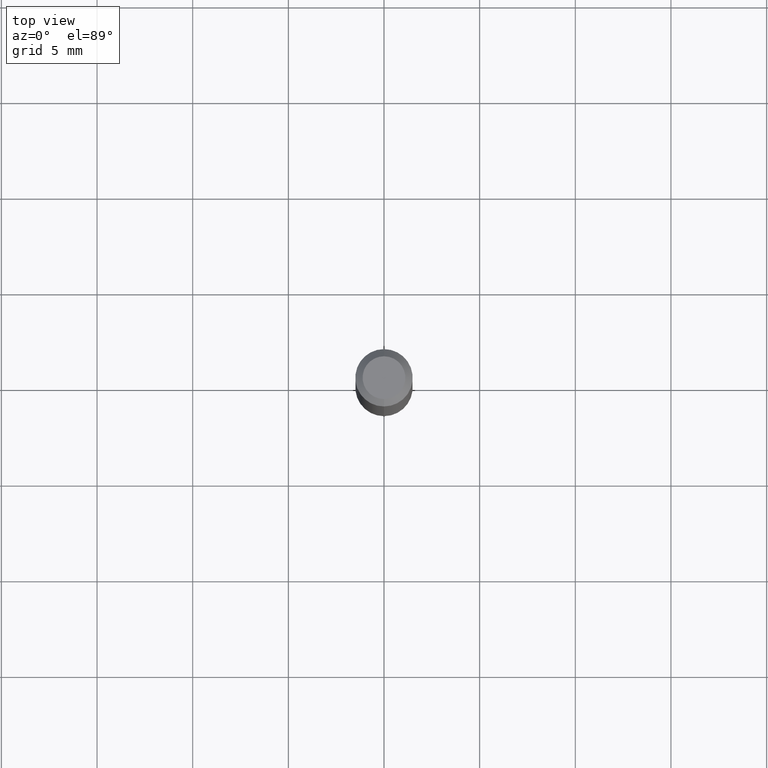
[diagram: clean part render]
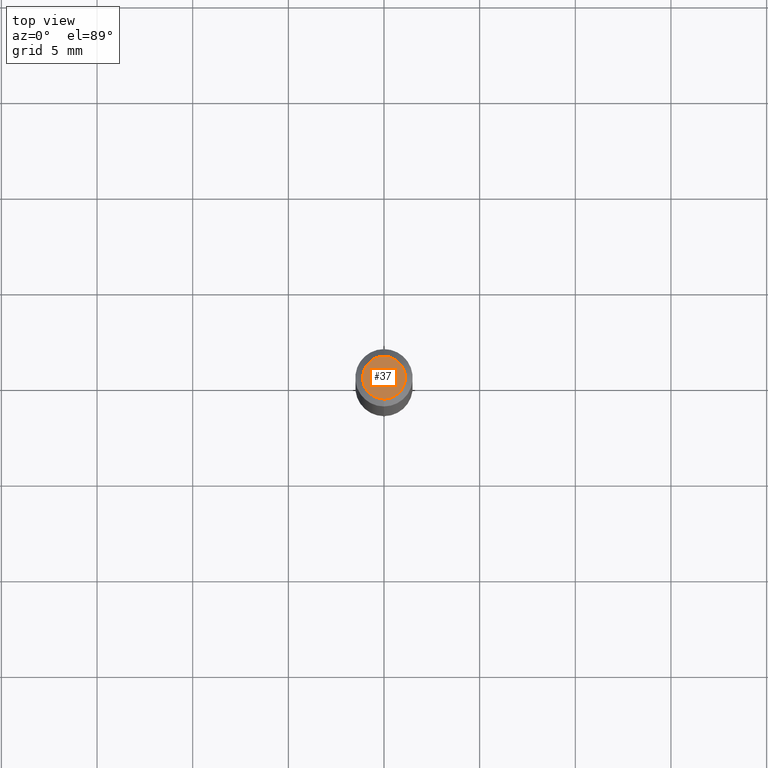
[diagram: same view with one face highlighted and labeled with its STEP entity id]
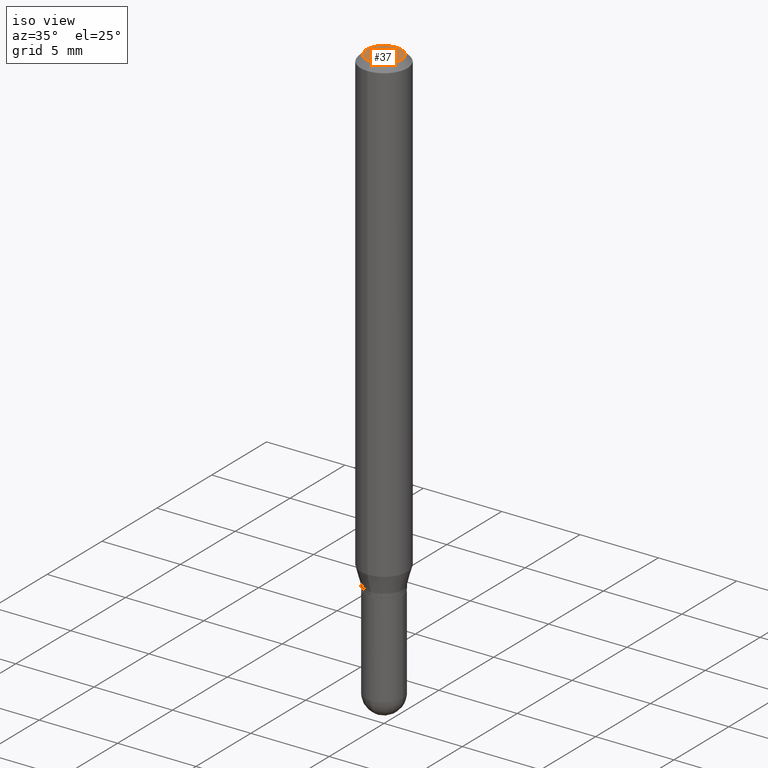
[diagram: same view with one face highlighted and labeled with its STEP entity id]
A machine part, top view. The second image highlights one B-rep face of the part: STEP entity #37.
A second angle (iso view) of the same face is appended — the face is thin or edge-on in the first view.
In plain terms, the highlighted planar face has unit normal (0, -0, -1).
Its self-contained STEP definition (entity closure, byte-faithful):
#4 = EDGE_LOOP ( 'NONE', ( #108, #353 ) ) ;
#7 = CIRCLE ( 'NONE', #445, 0.04404999999999999888 ) ;
#18 = FACE_OUTER_BOUND ( 'NONE', #4, .T. ) ;
#37 = ADVANCED_FACE ( 'NONE', ( #18 ), #447, .F. ) ;
#108 = ORIENTED_EDGE ( 'NONE', *, *, #277, .T. ) ;
#114 = DIRECTION ( 'NONE',  ( -2.445408174341908367E-29, 3.491568167093598573E-15, 1.000000000000000000 ) ) ;
#137 = CARTESIAN_POINT ( 'NONE',  ( 3.075995059520799729E-16, 0.04404999999999999888, -1.657327868089498836E-16 ) ) ;
#169 = DIRECTION ( 'NONE',  ( 6.982962677686265922E-15, 1.000000000000000000, -3.491568167093598573E-15 ) ) ;
#223 = CARTESIAN_POINT ( 'NONE',  ( 3.599717260347271507E-16, 0.04404999999999999888, -1.776619958574267450E-16 ) ) ;
#239 = EDGE_CURVE ( 'NONE', #459, #422, #7, .T. ) ;
#277 = EDGE_CURVE ( 'NONE', #422, #459, #357, .T. ) ;
#343 = CARTESIAN_POINT ( 'NONE',  ( -3.536586717851222218E-16, -0.04404999999999999888, 1.299451596635192992E-16 ) ) ;
#353 = ORIENTED_EDGE ( 'NONE', *, *, #239, .T. ) ;
#357 = CIRCLE ( 'NONE', #369, 0.04404999999999999888 ) ;
#365 = DIRECTION ( 'NONE',  ( -6.982962677686265133E-15, -1.000000000000000000, 3.491568167093598967E-15 ) ) ;
#369 = AXIS2_PLACEMENT_3D ( 'NONE', #511, #114, #468 ) ;
#416 = AXIS2_PLACEMENT_3D ( 'NONE', #137, #438, #169 ) ;
#422 = VERTEX_POINT ( 'NONE', #223 ) ;
#426 = DIRECTION ( 'NONE',  ( -2.445408174341908367E-29, 3.491568167093598573E-15, 1.000000000000000000 ) ) ;
#438 = DIRECTION ( 'NONE',  ( 2.445408174341908087E-29, -3.491568167093598573E-15, -1.000000000000000000 ) ) ;
#445 = AXIS2_PLACEMENT_3D ( 'NONE', #484, #426, #365 ) ;
#447 = PLANE ( 'NONE',  #416 ) ;
#459 = VERTEX_POINT ( 'NONE', #343 ) ;
#468 = DIRECTION ( 'NONE',  ( -6.982962677686265133E-15, -1.000000000000000000, 3.491568167093598967E-15 ) ) ;
#484 = CARTESIAN_POINT ( 'NONE',  ( 5.834357064115758471E-46, -8.330329314453348724E-32, -2.385841809695373215E-17 ) ) ;
#511 = CARTESIAN_POINT ( 'NONE',  ( 5.834357064115758471E-46, -8.330329314453348724E-32, -2.385841809695373215E-17 ) ) ;